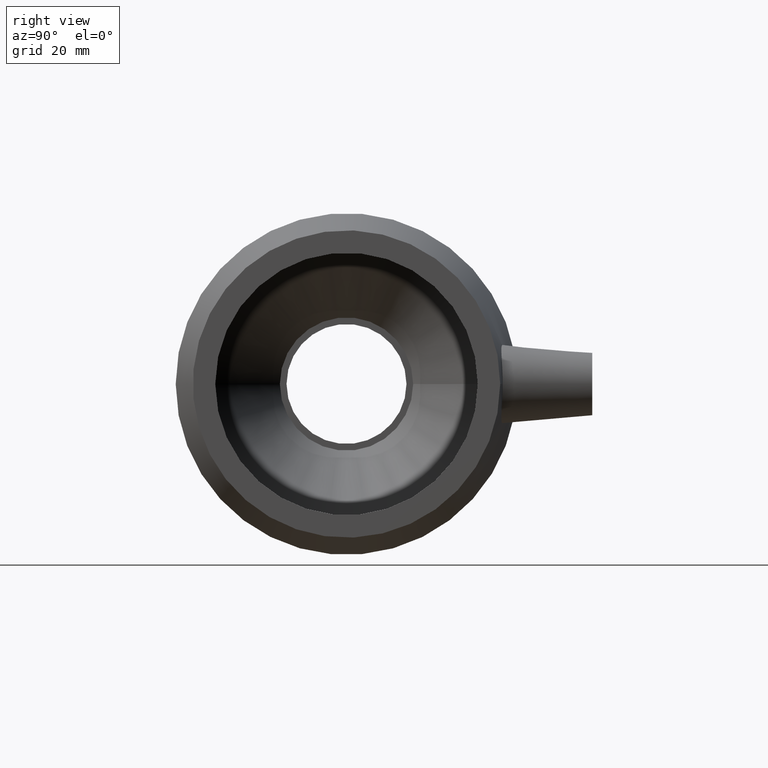
[diagram: clean part render]
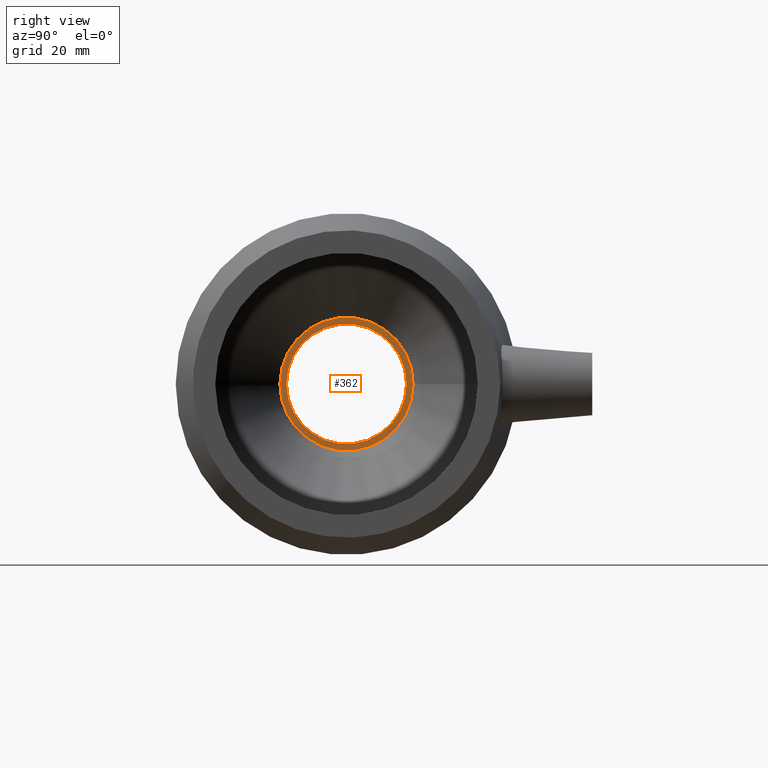
[diagram: same view with one face highlighted and labeled with its STEP entity id]
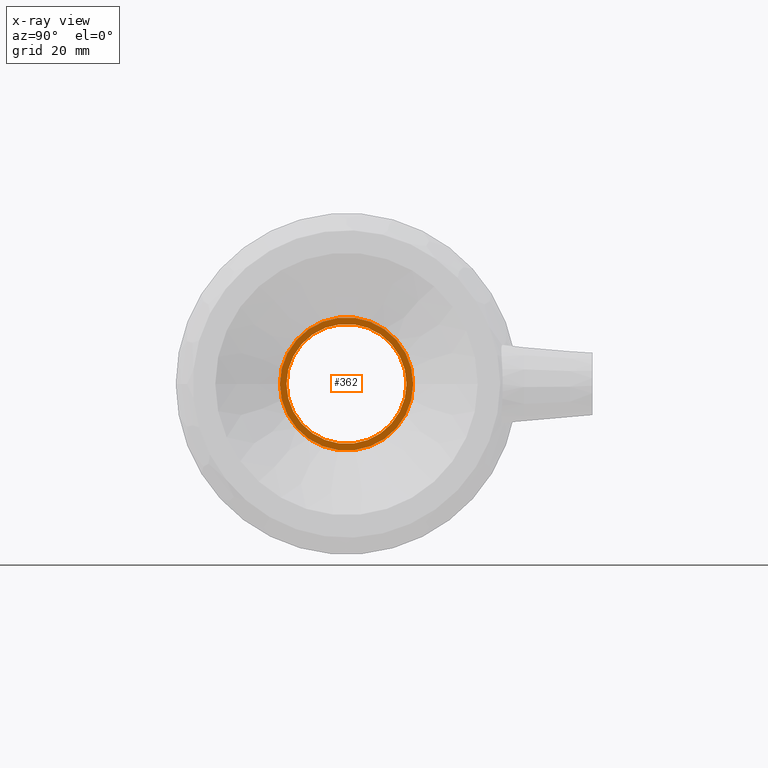
[diagram: x-ray of the same camera — body ghosted, the highlighted face saturated]
A machine part, right view. The second image highlights one B-rep face of the part: STEP entity #362.
The next image is the same camera in x-ray: the body ghosted, the highlighted face saturated — about 0% of this face is hidden behind the body in this view.
In plain terms, the highlighted planar face has unit normal (1, 0, 0).
Its self-contained STEP definition (entity closure, byte-faithful):
#49=FACE_BOUND('',#146,.T.);
#92=FACE_OUTER_BOUND('',#145,.T.);
#145=EDGE_LOOP('',(#307));
#146=EDGE_LOOP('',(#308));
#184=CIRCLE('',#417,16.);
#185=CIRCLE('',#419,14.4);
#216=VERTEX_POINT('',#705);
#217=VERTEX_POINT('',#708);
#250=EDGE_CURVE('',#216,#216,#184,.T.);
#251=EDGE_CURVE('',#217,#217,#185,.T.);
#307=ORIENTED_EDGE('',*,*,#250,.T.);
#308=ORIENTED_EDGE('',*,*,#251,.F.);
#335=PLANE('',#418);
#362=ADVANCED_FACE('',(#92,#49),#335,.T.);
#417=AXIS2_PLACEMENT_3D('',#706,#525,#526);
#418=AXIS2_PLACEMENT_3D('',#707,#527,#528);
#419=AXIS2_PLACEMENT_3D('',#709,#529,#530);
#525=DIRECTION('center_axis',(1.,1.83697019872103E-16,0.));
#526=DIRECTION('ref_axis',(0.,0.,-1.));
#527=DIRECTION('center_axis',(1.,1.83697019872103E-16,0.));
#528=DIRECTION('ref_axis',(0.,0.,-1.));
#529=DIRECTION('center_axis',(1.,1.83697019872103E-16,0.));
#530=DIRECTION('ref_axis',(0.,0.,-1.));
#705=CARTESIAN_POINT('',(-17.5,16.,0.));
#706=CARTESIAN_POINT('Origin',(-17.5,7.71527483462833E-15,0.));
#707=CARTESIAN_POINT('Origin',(-17.5,14.4,0.));
#708=CARTESIAN_POINT('',(-17.5,14.4,0.));
#709=CARTESIAN_POINT('Origin',(-17.5,7.71527483462833E-15,0.));